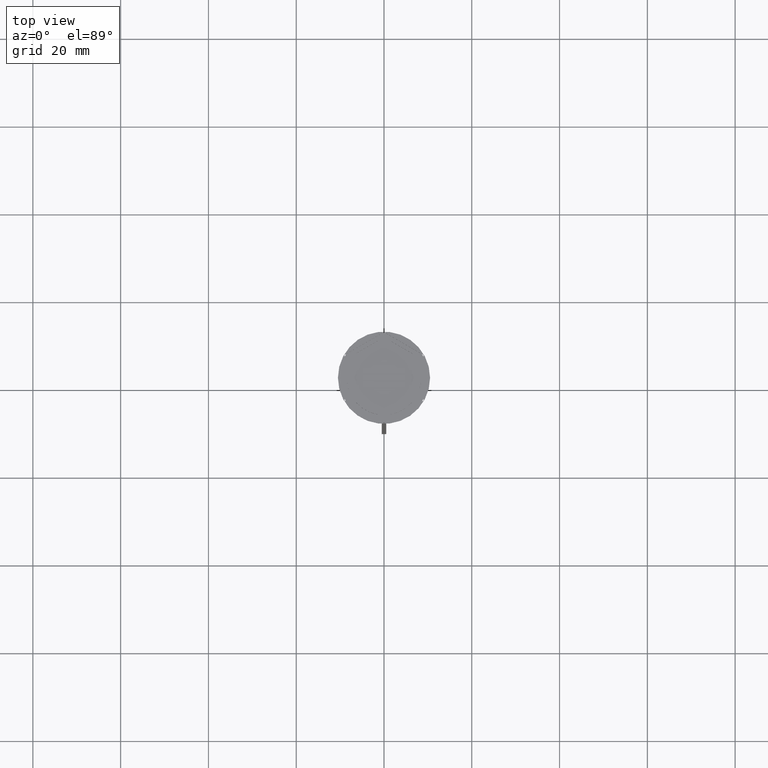
[diagram: clean part render]
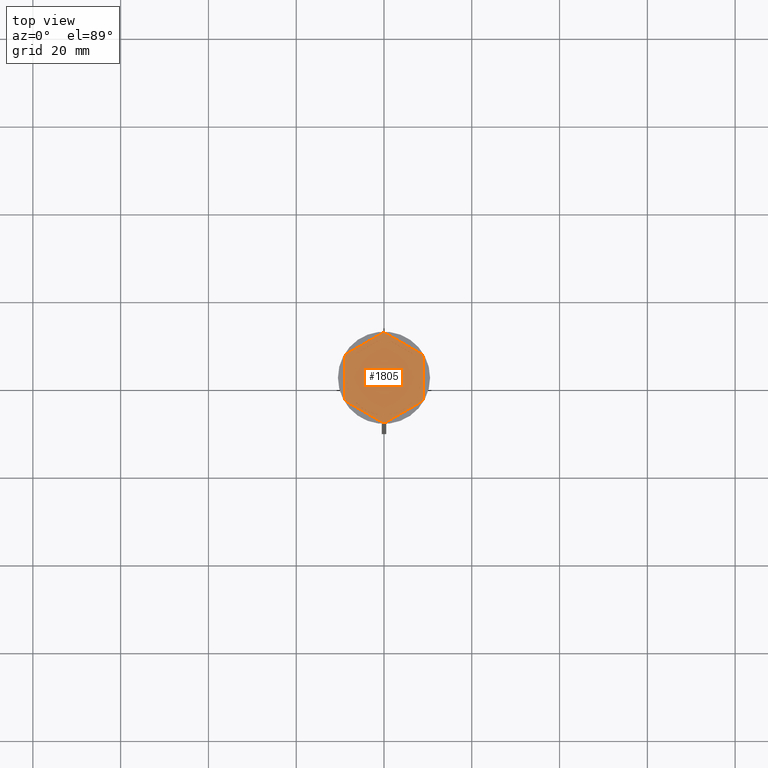
[diagram: same view with one face highlighted and labeled with its STEP entity id]
A machine part, top view. The second image highlights one B-rep face of the part: STEP entity #1805.
In plain terms, the highlighted planar face has unit normal (0, 0, 1).
Its self-contained STEP definition (entity closure, byte-faithful):
#20 = CIRCLE ( 'NONE', #2307, 8.500000000000000000 ) ;
#31 = FACE_BOUND ( 'NONE', #256, .T. ) ;
#34 = LINE ( 'NONE', #461, #2125 ) ;
#42 = FACE_BOUND ( 'NONE', #2156, .T. ) ;
#45 = VERTEX_POINT ( 'NONE', #2064 ) ;
#61 = CARTESIAN_POINT ( 'NONE',  ( -8.673617379884035472E-16, -9.237604307034013473, -1.000000000000000888 ) ) ;
#71 = DIRECTION ( 'NONE',  ( 0.000000000000000000, 0.000000000000000000, 1.000000000000000000 ) ) ;
#73 = DIRECTION ( 'NONE',  ( -1.877893248421449036E-16, -1.000000000000000000, 0.000000000000000000 ) ) ;
#76 = CARTESIAN_POINT ( 'NONE',  ( 8.656921938165297092, 5.394228634059953897, -1.000000000000000000 ) ) ;
#80 = CIRCLE ( 'NONE', #1860, 8.500000000000000000 ) ;
#90 = CARTESIAN_POINT ( 'NONE',  ( 0.000000000000000000, 0.000000000000000000, -1.000000000000000000 ) ) ;
#92 = ORIENTED_EDGE ( 'NONE', *, *, #1598, .T. ) ;
#96 = CARTESIAN_POINT ( 'NONE',  ( -9.000000000000001776, 5.196152422706632024, -1.000000000000000000 ) ) ;
#99 = ORIENTED_EDGE ( 'NONE', *, *, #861, .F. ) ;
#101 = CARTESIAN_POINT ( 'NONE',  ( -9.000000000000001776, 4.799999999999988276, -1.000000000000000000 ) ) ;
#104 = CIRCLE ( 'NONE', #2185, 10.19999999999999574 ) ;
#106 = CIRCLE ( 'NONE', #416, 8.500000000000000000 ) ;
#108 = CARTESIAN_POINT ( 'NONE',  ( -9.000000000000001776, -4.799999999999988276, -1.000000000000000000 ) ) ;
#112 = ORIENTED_EDGE ( 'NONE', *, *, #173, .F. ) ;
#119 = CARTESIAN_POINT ( 'NONE',  ( 0.000000000000000000, 0.000000000000000000, -1.000000000000000000 ) ) ;
#139 = ORIENTED_EDGE ( 'NONE', *, *, #2090, .F. ) ;
#155 = VECTOR ( 'NONE', #1542, 1000.000000000000000 ) ;
#157 = DIRECTION ( 'NONE',  ( 1.000000000000000000, 0.000000000000000000, 0.000000000000000000 ) ) ;
#158 = VERTEX_POINT ( 'NONE', #698 ) ;
#167 = CARTESIAN_POINT ( 'NONE',  ( -8.000000000000000000, -4.618802153517006737, -1.000000000000000888 ) ) ;
#168 = ORIENTED_EDGE ( 'NONE', *, *, #2415, .F. ) ;
#173 = EDGE_CURVE ( 'NONE', #2443, #503, #1321, .T. ) ;
#175 = CARTESIAN_POINT ( 'NONE',  ( 0.000000000000000000, 0.000000000000000000, -1.000000000000000000 ) ) ;
#180 = EDGE_CURVE ( 'NONE', #2019, #2403, #34, .T. ) ;
#225 = EDGE_CURVE ( 'NONE', #1016, #2041, #1233, .T. ) ;
#256 = EDGE_LOOP ( 'NONE', ( #2615, #2371 ) ) ;
#269 = VERTEX_POINT ( 'NONE', #1961 ) ;
#280 = DIRECTION ( 'NONE',  ( 1.000000000000000000, 1.598721155460225418E-14, 0.000000000000000000 ) ) ;
#300 = CARTESIAN_POINT ( 'NONE',  ( 0.000000000000000000, 0.000000000000000000, -1.000000000000000000 ) ) ;
#305 = VERTEX_POINT ( 'NONE', #1371 ) ;
#309 = CARTESIAN_POINT ( 'NONE',  ( -6.487468592766553854, 5.492062568640999842, -1.000000000000000888 ) ) ;
#320 = AXIS2_PLACEMENT_3D ( 'NONE', #119, #1154, #2346 ) ;
#321 = LINE ( 'NONE', #2429, #398 ) ;
#330 = DIRECTION ( 'NONE',  ( 0.8660254037844385966, -0.4999999999999999445, 0.000000000000000000 ) ) ;
#343 = VERTEX_POINT ( 'NONE', #1776 ) ;
#356 = CARTESIAN_POINT ( 'NONE',  ( 8.000000000000000000, 4.618802153517006737, -1.000000000000000888 ) ) ;
#358 = DIRECTION ( 'NONE',  ( 1.000000000000000000, 0.000000000000000000, 0.000000000000000000 ) ) ;
#360 = ORIENTED_EDGE ( 'NONE', *, *, #1560, .F. ) ;
#371 = CIRCLE ( 'NONE', #1881, 8.500000000000000000 ) ;
#382 = CARTESIAN_POINT ( 'NONE',  ( 9.000000000000001776, -5.196152422706632024, -1.000000000000000000 ) ) ;
#388 = VERTEX_POINT ( 'NONE', #2201 ) ;
#398 = VECTOR ( 'NONE', #554, 1000.000000000000227 ) ;
#399 = ORIENTED_EDGE ( 'NONE', *, *, #1253, .T. ) ;
#414 = EDGE_CURVE ( 'NONE', #158, #2143, #576, .T. ) ;
#415 = ORIENTED_EDGE ( 'NONE', *, *, #225, .F. ) ;
#416 = AXIS2_PLACEMENT_3D ( 'NONE', #1949, #2351, #504 ) ;
#444 = DIRECTION ( 'NONE',  ( 1.000000000000000000, 0.000000000000000000, 0.000000000000000000 ) ) ;
#447 = DIRECTION ( 'NONE',  ( 0.000000000000000000, 0.000000000000000000, 1.000000000000000000 ) ) ;
#450 = CIRCLE ( 'NONE', #320, 10.19999999999999574 ) ;
#461 = CARTESIAN_POINT ( 'NONE',  ( 7.999999999999998224, -4.618802153517008513, -1.000000000000000888 ) ) ;
#468 = CARTESIAN_POINT ( 'NONE',  ( 0.000000000000000000, 0.000000000000000000, -1.000000000000000000 ) ) ;
#472 = CIRCLE ( 'NONE', #2078, 10.19999999999999574 ) ;
#486 = CARTESIAN_POINT ( 'NONE',  ( 9.000000000000001776, 4.799999999999988276, -1.000000000000000000 ) ) ;
#491 = AXIS2_PLACEMENT_3D ( 'NONE', #1372, #1384, #358 ) ;
#497 = CIRCLE ( 'NONE', #2014, 8.500000000000000000 ) ;
#503 = VERTEX_POINT ( 'NONE', #1816 ) ;
#504 = DIRECTION ( 'NONE',  ( 1.000000000000000000, 0.000000000000000000, 0.000000000000000000 ) ) ;
#514 = DIRECTION ( 'NONE',  ( 1.000000000000000000, 0.000000000000000000, 0.000000000000000000 ) ) ;
#550 = VERTEX_POINT ( 'NONE', #560 ) ;
#554 = DIRECTION ( 'NONE',  ( -0.8660254037844385966, 0.5000000000000000000, 0.000000000000000000 ) ) ;
#559 = EDGE_CURVE ( 'NONE', #813, #809, #104, .T. ) ;
#560 = CARTESIAN_POINT ( 'NONE',  ( 9.000000000000001776, -4.799999999999988276, -1.000000000000000000 ) ) ;
#561 = CARTESIAN_POINT ( 'NONE',  ( 8.000000000000000000, -2.872281323269017417, -1.000000000000000888 ) ) ;
#576 = LINE ( 'NONE', #2624, #1062 ) ;
#581 = VERTEX_POINT ( 'NONE', #1869 ) ;
#631 = ORIENTED_EDGE ( 'NONE', *, *, #414, .T. ) ;
#656 = FACE_BOUND ( 'NONE', #2245, .T. ) ;
#681 = DIRECTION ( 'NONE',  ( 1.000000000000000000, 0.000000000000000000, 0.000000000000000000 ) ) ;
#690 = ORIENTED_EDGE ( 'NONE', *, *, #1264, .F. ) ;
#692 = EDGE_LOOP ( 'NONE', ( #1147, #360, #690 ) ) ;
#698 = CARTESIAN_POINT ( 'NONE',  ( -8.656921938165295316, -5.394228634059957450, -1.000000000000000000 ) ) ;
#699 = LINE ( 'NONE', #1526, #155 ) ;
#703 = CARTESIAN_POINT ( 'NONE',  ( -0.3430780618347024080, -10.19422863405994306, -1.000000000000000000 ) ) ;
#708 = AXIS2_PLACEMENT_3D ( 'NONE', #1943, #71, #681 ) ;
#713 = EDGE_CURVE ( 'NONE', #2403, #2019, #880, .T. ) ;
#732 = CARTESIAN_POINT ( 'NONE',  ( -8.000000000000000000, -2.872281323269016085, -1.000000000000000888 ) ) ;
#738 = AXIS2_PLACEMENT_3D ( 'NONE', #468, #1449, #2306 ) ;
#749 = EDGE_LOOP ( 'NONE', ( #92, #1732, #1002, #415, #1517, #1629, #1932, #139, #631, #810, #399, #1439 ) ) ;
#751 = DIRECTION ( 'NONE',  ( 0.000000000000000000, -1.000000000000000000, 0.000000000000000000 ) ) ;
#765 = CARTESIAN_POINT ( 'NONE',  ( 0.000000000000000000, 10.39230484541326582, -1.000000000000000000 ) ) ;
#767 = CARTESIAN_POINT ( 'NONE',  ( 8.673617379884035472E-16, 9.237604307034013473, -1.000000000000000888 ) ) ;
#779 = DIRECTION ( 'NONE',  ( 0.8660254037844387076, -0.4999999999999997224, 0.000000000000000000 ) ) ;
#809 = VERTEX_POINT ( 'NONE', #486 ) ;
#810 = ORIENTED_EDGE ( 'NONE', *, *, #1491, .F. ) ;
#813 = VERTEX_POINT ( 'NONE', #76 ) ;
#816 = DIRECTION ( 'NONE',  ( 1.000000000000000000, 0.000000000000000000, 0.000000000000000000 ) ) ;
#847 = VECTOR ( 'NONE', #751, 1000.000000000000000 ) ;
#861 = EDGE_CURVE ( 'NONE', #388, #269, #106, .T. ) ;
#880 = CIRCLE ( 'NONE', #708, 8.500000000000000000 ) ;
#908 = VECTOR ( 'NONE', #1591, 1000.000000000000000 ) ;
#930 = CARTESIAN_POINT ( 'NONE',  ( -8.000000000000000000, 2.872281323269016085, -1.000000000000000888 ) ) ;
#1002 = ORIENTED_EDGE ( 'NONE', *, *, #2602, .T. ) ;
#1016 = VERTEX_POINT ( 'NONE', #1671 ) ;
#1037 = EDGE_CURVE ( 'NONE', #45, #1478, #20, .T. ) ;
#1049 = CARTESIAN_POINT ( 'NONE',  ( 0.000000000000000000, 0.000000000000000000, -1.000000000000000000 ) ) ;
#1062 = VECTOR ( 'NONE', #779, 1000.000000000000114 ) ;
#1086 = EDGE_LOOP ( 'NONE', ( #1428, #1794 ) ) ;
#1102 = VECTOR ( 'NONE', #1343, 1000.000000000000114 ) ;
#1108 = CARTESIAN_POINT ( 'NONE',  ( 0.000000000000000000, 0.000000000000000000, -1.000000000000000000 ) ) ;
#1124 = CARTESIAN_POINT ( 'NONE',  ( -8.656921938165297092, 5.394228634059953009, -1.000000000000000000 ) ) ;
#1127 = VECTOR ( 'NONE', #1718, 1000.000000000000114 ) ;
#1133 = EDGE_CURVE ( 'NONE', #1401, #581, #1409, .T. ) ;
#1147 = ORIENTED_EDGE ( 'NONE', *, *, #1326, .F. ) ;
#1154 = DIRECTION ( 'NONE',  ( -0.000000000000000000, -0.000000000000000000, -1.000000000000000000 ) ) ;
#1174 = ORIENTED_EDGE ( 'NONE', *, *, #1345, .F. ) ;
#1187 = VERTEX_POINT ( 'NONE', #108 ) ;
#1213 = CARTESIAN_POINT ( 'NONE',  ( 0.000000000000000000, 0.000000000000000000, -1.000000000000000000 ) ) ;
#1219 = DIRECTION ( 'NONE',  ( 1.000000000000000000, 0.000000000000000000, 0.000000000000000000 ) ) ;
#1233 = CIRCLE ( 'NONE', #1267, 10.19999999999999574 ) ;
#1239 = AXIS2_PLACEMENT_3D ( 'NONE', #1465, #447, #1884 ) ;
#1253 = EDGE_CURVE ( 'NONE', #1717, #343, #699, .T. ) ;
#1261 = VERTEX_POINT ( 'NONE', #1124 ) ;
#1264 = EDGE_CURVE ( 'NONE', #305, #2333, #497, .T. ) ;
#1267 = AXIS2_PLACEMENT_3D ( 'NONE', #90, #1271, #280 ) ;
#1268 = CIRCLE ( 'NONE', #491, 10.19999999999999574 ) ;
#1271 = DIRECTION ( 'NONE',  ( -0.000000000000000000, -0.000000000000000000, -1.000000000000000000 ) ) ;
#1275 = EDGE_CURVE ( 'NONE', #2548, #1187, #1336, .T. ) ;
#1278 = DIRECTION ( 'NONE',  ( -0.000000000000000000, -0.000000000000000000, -1.000000000000000000 ) ) ;
#1310 = VECTOR ( 'NONE', #2003, 1000.000000000000000 ) ;
#1321 = LINE ( 'NONE', #61, #1909 ) ;
#1326 = EDGE_CURVE ( 'NONE', #2553, #305, #371, .T. ) ;
#1336 = LINE ( 'NONE', #96, #847 ) ;
#1343 = DIRECTION ( 'NONE',  ( 0.8660254037844384856, 0.5000000000000003331, -0.000000000000000000 ) ) ;
#1345 = EDGE_CURVE ( 'NONE', #1478, #45, #1763, .T. ) ;
#1371 = CARTESIAN_POINT ( 'NONE',  ( -8.500000000000000000, 0.000000000000000000, -1.000000000000000000 ) ) ;
#1372 = CARTESIAN_POINT ( 'NONE',  ( 0.000000000000000000, 0.000000000000000000, -1.000000000000000000 ) ) ;
#1378 = DIRECTION ( 'NONE',  ( 0.000000000000000000, 1.000000000000000000, 0.000000000000000000 ) ) ;
#1384 = DIRECTION ( 'NONE',  ( -0.000000000000000000, -0.000000000000000000, -1.000000000000000000 ) ) ;
#1401 = VERTEX_POINT ( 'NONE', #2385 ) ;
#1409 = CIRCLE ( 'NONE', #1239, 8.500000000000000000 ) ;
#1412 = EDGE_CURVE ( 'NONE', #2548, #1261, #1268, .T. ) ;
#1421 = DIRECTION ( 'NONE',  ( 0.000000000000000000, 0.000000000000000000, 1.000000000000000000 ) ) ;
#1428 = ORIENTED_EDGE ( 'NONE', *, *, #713, .F. ) ;
#1434 = DIRECTION ( 'NONE',  ( -0.000000000000000000, -0.000000000000000000, -1.000000000000000000 ) ) ;
#1439 = ORIENTED_EDGE ( 'NONE', *, *, #1454, .F. ) ;
#1449 = DIRECTION ( 'NONE',  ( 0.000000000000000000, 0.000000000000000000, 1.000000000000000000 ) ) ;
#1454 = EDGE_CURVE ( 'NONE', #550, #343, #1739, .T. ) ;
#1465 = CARTESIAN_POINT ( 'NONE',  ( 0.000000000000000000, 0.000000000000000000, -1.000000000000000000 ) ) ;
#1478 = VERTEX_POINT ( 'NONE', #309 ) ;
#1481 = FACE_OUTER_BOUND ( 'NONE', #749, .T. ) ;
#1486 = DIRECTION ( 'NONE',  ( -0.8660254037844387076, -0.4999999999999998335, 0.000000000000000000 ) ) ;
#1491 = EDGE_CURVE ( 'NONE', #1717, #2143, #450, .T. ) ;
#1517 = ORIENTED_EDGE ( 'NONE', *, *, #2372, .T. ) ;
#1524 = VECTOR ( 'NONE', #1378, 1000.000000000000000 ) ;
#1526 = CARTESIAN_POINT ( 'NONE',  ( 2.607697573705103160E-15, -10.39230484541326405, -1.000000000000000000 ) ) ;
#1542 = DIRECTION ( 'NONE',  ( 0.8660254037844385966, 0.5000000000000001110, 0.000000000000000000 ) ) ;
#1546 = LINE ( 'NONE', #765, #908 ) ;
#1560 = EDGE_CURVE ( 'NONE', #2333, #2553, #1784, .T. ) ;
#1591 = DIRECTION ( 'NONE',  ( -0.8660254037844385966, -0.5000000000000001110, 0.000000000000000000 ) ) ;
#1597 = CARTESIAN_POINT ( 'NONE',  ( 8.000000000000000000, 2.872281323269014752, -1.000000000000000888 ) ) ;
#1598 = EDGE_CURVE ( 'NONE', #550, #809, #1656, .T. ) ;
#1629 = ORIENTED_EDGE ( 'NONE', *, *, #1412, .F. ) ;
#1656 = LINE ( 'NONE', #382, #1310 ) ;
#1666 = PLANE ( 'NONE',  #738 ) ;
#1671 = CARTESIAN_POINT ( 'NONE',  ( -0.3430780618347059052, 10.19422863405994306, -1.000000000000000000 ) ) ;
#1675 = CARTESIAN_POINT ( 'NONE',  ( 0.3430780618347059052, -10.19422863405994306, -1.000000000000000000 ) ) ;
#1717 = VERTEX_POINT ( 'NONE', #1675 ) ;
#1718 = DIRECTION ( 'NONE',  ( -0.8660254037844385966, 0.4999999999999999445, 0.000000000000000000 ) ) ;
#1732 = ORIENTED_EDGE ( 'NONE', *, *, #559, .F. ) ;
#1739 = CIRCLE ( 'NONE', #2340, 10.19999999999999574 ) ;
#1763 = LINE ( 'NONE', #767, #1102 ) ;
#1776 = CARTESIAN_POINT ( 'NONE',  ( 8.656921938165297092, -5.394228634059953009, -1.000000000000000000 ) ) ;
#1779 = EDGE_LOOP ( 'NONE', ( #99, #168 ) ) ;
#1782 = ORIENTED_EDGE ( 'NONE', *, *, #1037, .F. ) ;
#1784 = LINE ( 'NONE', #2604, #1524 ) ;
#1787 = LINE ( 'NONE', #356, #2465 ) ;
#1794 = ORIENTED_EDGE ( 'NONE', *, *, #180, .F. ) ;
#1805 = ADVANCED_FACE ( 'NONE', ( #31, #1888, #42, #2488, #2506, #656, #1481 ), #1666, .T. ) ;
#1816 = CARTESIAN_POINT ( 'NONE',  ( 1.512531407233452363, -8.364343891910017703, -1.000000000000000888 ) ) ;
#1860 = AXIS2_PLACEMENT_3D ( 'NONE', #175, #1421, #1219 ) ;
#1869 = CARTESIAN_POINT ( 'NONE',  ( 1.512531407233448366, 8.364343891910017703, -1.000000000000000888 ) ) ;
#1881 = AXIS2_PLACEMENT_3D ( 'NONE', #300, #2009, #157 ) ;
#1884 = DIRECTION ( 'NONE',  ( 1.000000000000000000, 0.000000000000000000, 0.000000000000000000 ) ) ;
#1888 = FACE_BOUND ( 'NONE', #1086, .T. ) ;
#1909 = VECTOR ( 'NONE', #1486, 1000.000000000000114 ) ;
#1929 = DIRECTION ( 'NONE',  ( 1.000000000000000000, 8.881784197001252323E-16, 0.000000000000000000 ) ) ;
#1932 = ORIENTED_EDGE ( 'NONE', *, *, #1275, .T. ) ;
#1938 = ORIENTED_EDGE ( 'NONE', *, *, #2103, .F. ) ;
#1943 = CARTESIAN_POINT ( 'NONE',  ( 0.000000000000000000, 0.000000000000000000, -1.000000000000000000 ) ) ;
#1949 = CARTESIAN_POINT ( 'NONE',  ( 0.000000000000000000, 0.000000000000000000, -1.000000000000000000 ) ) ;
#1959 = DIRECTION ( 'NONE',  ( -0.000000000000000000, -0.000000000000000000, -1.000000000000000000 ) ) ;
#1961 = CARTESIAN_POINT ( 'NONE',  ( -1.512531407233448366, -8.364343891910017703, -1.000000000000000888 ) ) ;
#2003 = DIRECTION ( 'NONE',  ( 0.000000000000000000, 1.000000000000000000, 0.000000000000000000 ) ) ;
#2009 = DIRECTION ( 'NONE',  ( 0.000000000000000000, 0.000000000000000000, 1.000000000000000000 ) ) ;
#2014 = AXIS2_PLACEMENT_3D ( 'NONE', #2349, #2364, #514 ) ;
#2019 = VERTEX_POINT ( 'NONE', #1597 ) ;
#2022 = LINE ( 'NONE', #167, #1127 ) ;
#2036 = DIRECTION ( 'NONE',  ( 0.000000000000000000, 0.000000000000000000, 1.000000000000000000 ) ) ;
#2041 = VERTEX_POINT ( 'NONE', #2447 ) ;
#2064 = CARTESIAN_POINT ( 'NONE',  ( -1.512531407233451475, 8.364343891910017703, -1.000000000000000888 ) ) ;
#2078 = AXIS2_PLACEMENT_3D ( 'NONE', #2599, #1434, #816 ) ;
#2090 = EDGE_CURVE ( 'NONE', #158, #1187, #472, .T. ) ;
#2103 = EDGE_CURVE ( 'NONE', #503, #2443, #80, .T. ) ;
#2125 = VECTOR ( 'NONE', #73, 1000.000000000000000 ) ;
#2143 = VERTEX_POINT ( 'NONE', #703 ) ;
#2156 = EDGE_LOOP ( 'NONE', ( #1938, #112 ) ) ;
#2185 = AXIS2_PLACEMENT_3D ( 'NONE', #1049, #1278, #444 ) ;
#2201 = CARTESIAN_POINT ( 'NONE',  ( -6.487468592766552078, -5.492062568641001619, -1.000000000000000888 ) ) ;
#2245 = EDGE_LOOP ( 'NONE', ( #1782, #1174 ) ) ;
#2298 = DIRECTION ( 'NONE',  ( 1.000000000000000000, 0.000000000000000000, 0.000000000000000000 ) ) ;
#2306 = DIRECTION ( 'NONE',  ( 1.000000000000000000, 0.000000000000000000, -0.000000000000000000 ) ) ;
#2307 = AXIS2_PLACEMENT_3D ( 'NONE', #1213, #2036, #2298 ) ;
#2317 = EDGE_CURVE ( 'NONE', #581, #1401, #1787, .T. ) ;
#2333 = VERTEX_POINT ( 'NONE', #732 ) ;
#2340 = AXIS2_PLACEMENT_3D ( 'NONE', #1108, #1959, #1929 ) ;
#2346 = DIRECTION ( 'NONE',  ( 1.000000000000000000, 0.000000000000000000, 0.000000000000000000 ) ) ;
#2349 = CARTESIAN_POINT ( 'NONE',  ( 0.000000000000000000, 0.000000000000000000, -1.000000000000000000 ) ) ;
#2351 = DIRECTION ( 'NONE',  ( 0.000000000000000000, 0.000000000000000000, 1.000000000000000000 ) ) ;
#2364 = DIRECTION ( 'NONE',  ( 0.000000000000000000, 0.000000000000000000, 1.000000000000000000 ) ) ;
#2371 = ORIENTED_EDGE ( 'NONE', *, *, #2317, .F. ) ;
#2372 = EDGE_CURVE ( 'NONE', #1016, #1261, #1546, .T. ) ;
#2385 = CARTESIAN_POINT ( 'NONE',  ( 6.487468592766552078, 5.492062568641001619, -1.000000000000000888 ) ) ;
#2403 = VERTEX_POINT ( 'NONE', #561 ) ;
#2415 = EDGE_CURVE ( 'NONE', #269, #388, #2022, .T. ) ;
#2429 = CARTESIAN_POINT ( 'NONE',  ( 9.000000000000001776, 5.196152422706632912, -1.000000000000000000 ) ) ;
#2443 = VERTEX_POINT ( 'NONE', #2541 ) ;
#2447 = CARTESIAN_POINT ( 'NONE',  ( 0.3430780618347050170, 10.19422863405994306, -1.000000000000000000 ) ) ;
#2465 = VECTOR ( 'NONE', #330, 1000.000000000000114 ) ;
#2488 = FACE_BOUND ( 'NONE', #1779, .T. ) ;
#2506 = FACE_BOUND ( 'NONE', #692, .T. ) ;
#2541 = CARTESIAN_POINT ( 'NONE',  ( 6.487468592766547637, -5.492062568641006060, -1.000000000000000888 ) ) ;
#2548 = VERTEX_POINT ( 'NONE', #101 ) ;
#2553 = VERTEX_POINT ( 'NONE', #930 ) ;
#2599 = CARTESIAN_POINT ( 'NONE',  ( 0.000000000000000000, 0.000000000000000000, -1.000000000000000000 ) ) ;
#2602 = EDGE_CURVE ( 'NONE', #813, #2041, #321, .T. ) ;
#2604 = CARTESIAN_POINT ( 'NONE',  ( -8.000000000000000000, 4.618802153517004072, -1.000000000000000888 ) ) ;
#2615 = ORIENTED_EDGE ( 'NONE', *, *, #1133, .F. ) ;
#2624 = CARTESIAN_POINT ( 'NONE',  ( -9.000000000000001776, -5.196152422706632912, -1.000000000000000000 ) ) ;